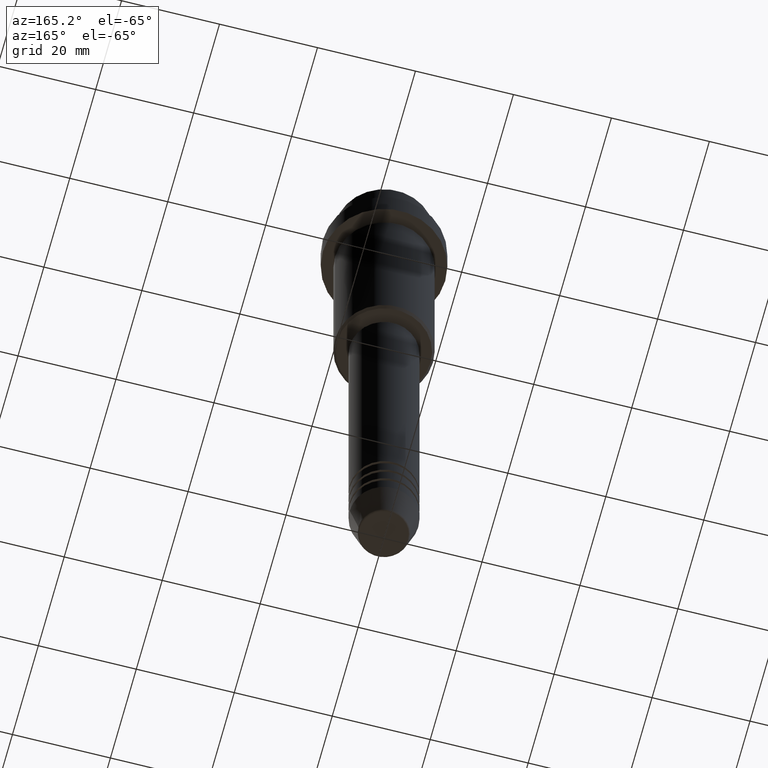
[diagram: clean part render]
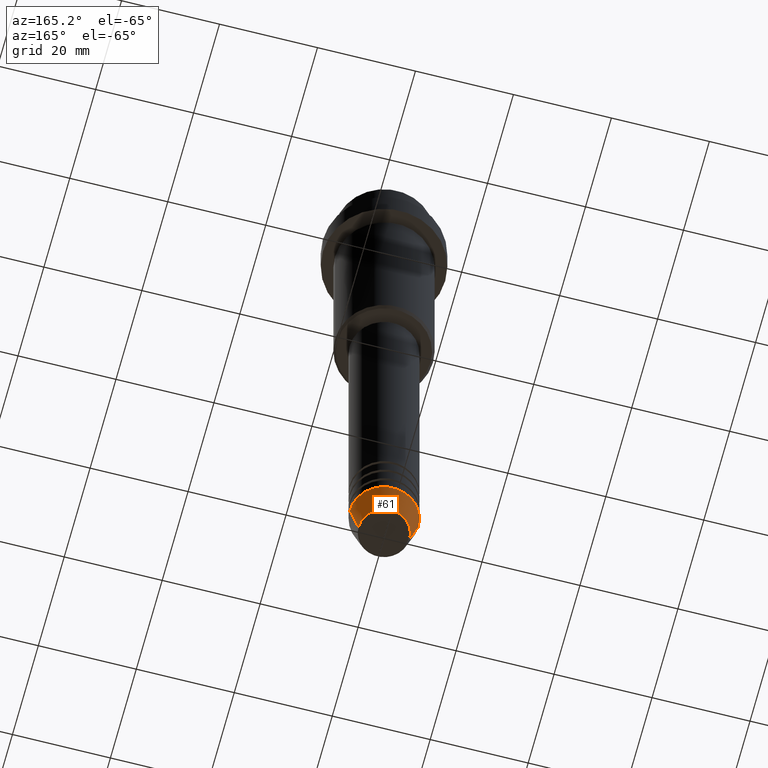
[diagram: same view with one face highlighted and labeled with its STEP entity id]
A machine part, auxiliary view. The second image highlights one B-rep face of the part: STEP entity #61.
In plain terms, the highlighted conical surface has half-angle 15 deg.
Its self-contained STEP definition (entity closure, byte-faithful):
#54 = VERTEX_POINT ( 'NONE', #184 ) ;
#61 = ADVANCED_FACE ( 'NONE', ( #1148 ), #373, .T. ) ;
#118 = LINE ( 'NONE', #229, #1380 ) ;
#155 = EDGE_CURVE ( 'NONE', #1235, #718, #1033, .T. ) ;
#184 = CARTESIAN_POINT ( 'NONE',  ( -7.000000000000000000, 8.572527594031473190E-16, -133.0000000000000000 ) ) ;
#229 = CARTESIAN_POINT ( 'NONE',  ( 7.000000000000000000, 0.000000000000000000, -133.0000000000000000 ) ) ;
#262 = DIRECTION ( 'NONE',  ( -0.000000000000000000, -0.000000000000000000, 1.000000000000000000 ) ) ;
#278 = EDGE_CURVE ( 'NONE', #1235, #468, #118, .T. ) ;
#314 = DIRECTION ( 'NONE',  ( -0.2588190451025214056, 3.169619151431772953E-17, 0.9659258262890680902 ) ) ;
#334 = EDGE_CURVE ( 'NONE', #468, #54, #638, .T. ) ;
#373 = CONICAL_SURFACE ( 'NONE', #443, 7.000000000000000000, 0.2617993877991501295 ) ;
#390 = CARTESIAN_POINT ( 'NONE',  ( 5.223655072137191269, 0.000000000000000000, -139.6294095225512706 ) ) ;
#393 = DIRECTION ( 'NONE',  ( -0.000000000000000000, -0.000000000000000000, 1.000000000000000000 ) ) ;
#428 = ORIENTED_EDGE ( 'NONE', *, *, #334, .F. ) ;
#443 = AXIS2_PLACEMENT_3D ( 'NONE', #839, #393, #597 ) ;
#468 = VERTEX_POINT ( 'NONE', #540 ) ;
#472 = DIRECTION ( 'NONE',  ( 0.2588190451025214056, 0.000000000000000000, 0.9659258262890680902 ) ) ;
#501 = CARTESIAN_POINT ( 'NONE',  ( 0.000000000000000000, 0.000000000000000000, -139.6294095225512706 ) ) ;
#540 = CARTESIAN_POINT ( 'NONE',  ( 7.000000000000000000, 0.000000000000000000, -133.0000000000000000 ) ) ;
#597 = DIRECTION ( 'NONE',  ( 1.000000000000000000, 0.000000000000000000, 0.000000000000000000 ) ) ;
#601 = CARTESIAN_POINT ( 'NONE',  ( 0.000000000000000000, 0.000000000000000000, -133.0000000000000000 ) ) ;
#632 = EDGE_CURVE ( 'NONE', #718, #54, #654, .T. ) ;
#638 = CIRCLE ( 'NONE', #659, 7.000000000000000000 ) ;
#654 = LINE ( 'NONE', #1201, #874 ) ;
#659 = AXIS2_PLACEMENT_3D ( 'NONE', #601, #837, #1167 ) ;
#718 = VERTEX_POINT ( 'NONE', #1124 ) ;
#798 = ORIENTED_EDGE ( 'NONE', *, *, #155, .T. ) ;
#837 = DIRECTION ( 'NONE',  ( -0.000000000000000000, -0.000000000000000000, 1.000000000000000000 ) ) ;
#839 = CARTESIAN_POINT ( 'NONE',  ( 0.000000000000000000, 0.000000000000000000, -133.0000000000000000 ) ) ;
#862 = ORIENTED_EDGE ( 'NONE', *, *, #278, .F. ) ;
#874 = VECTOR ( 'NONE', #314, 1000.000000000000000 ) ;
#924 = DIRECTION ( 'NONE',  ( 1.000000000000000000, 0.000000000000000000, 0.000000000000000000 ) ) ;
#1033 = CIRCLE ( 'NONE', #1341, 5.223655072137191269 ) ;
#1124 = CARTESIAN_POINT ( 'NONE',  ( -5.223655072137191269, 7.484830028987061160E-16, -139.6294095225512706 ) ) ;
#1148 = FACE_OUTER_BOUND ( 'NONE', #1275, .T. ) ;
#1167 = DIRECTION ( 'NONE',  ( 1.000000000000000000, 0.000000000000000000, 0.000000000000000000 ) ) ;
#1201 = CARTESIAN_POINT ( 'NONE',  ( -7.000000000000000000, 8.572527594031473190E-16, -133.0000000000000000 ) ) ;
#1235 = VERTEX_POINT ( 'NONE', #390 ) ;
#1275 = EDGE_LOOP ( 'NONE', ( #798, #1332, #428, #862 ) ) ;
#1332 = ORIENTED_EDGE ( 'NONE', *, *, #632, .T. ) ;
#1341 = AXIS2_PLACEMENT_3D ( 'NONE', #501, #262, #924 ) ;
#1380 = VECTOR ( 'NONE', #472, 1000.000000000000000 ) ;